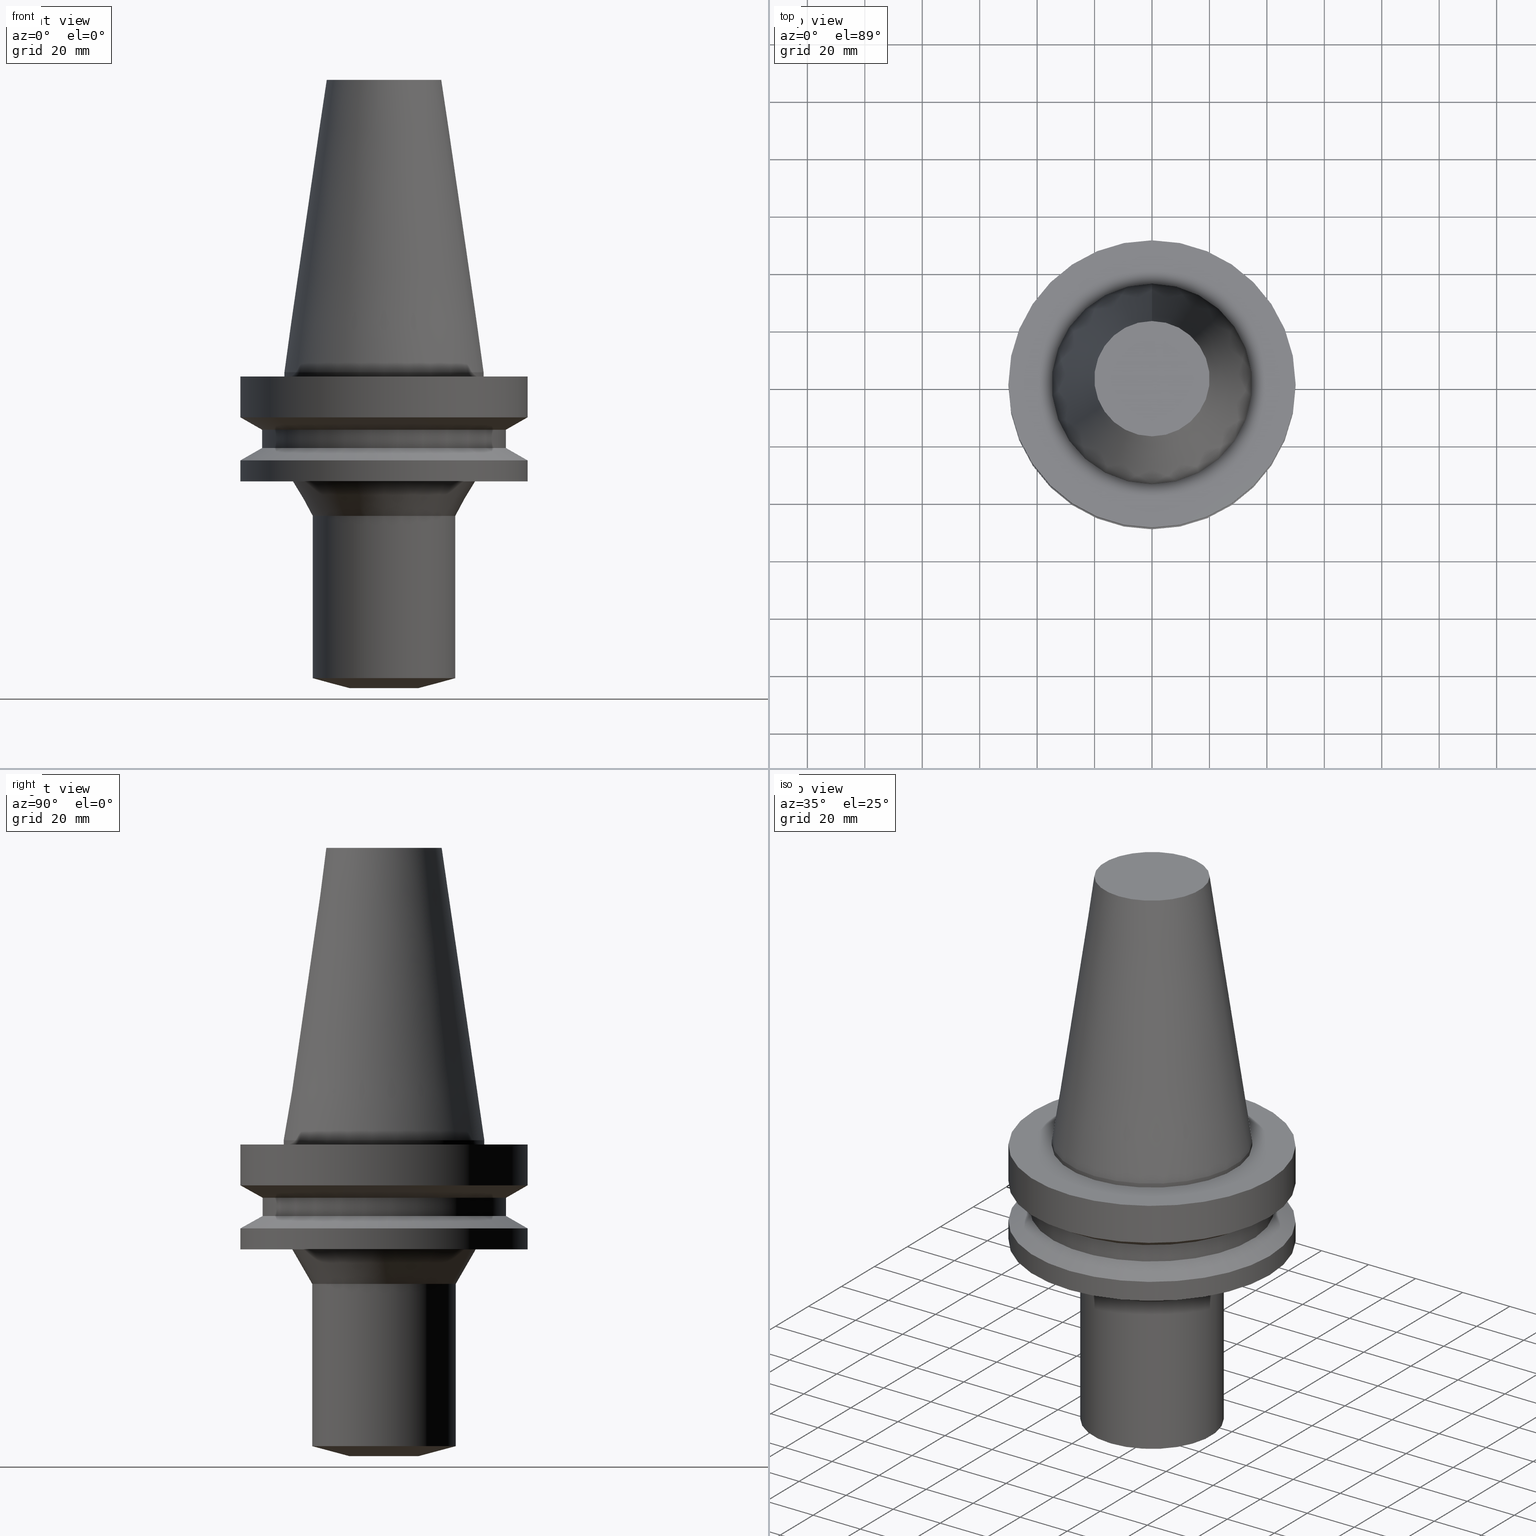
[diagram: canonical four-view strip — front | top / right | iso, engineering-drawing reading convention]
A machine part, canonical four-view strip (front | top / right | iso — engineering-drawing reading convention). The complete STEP part file that produces these views, byte-faithful:
ISO-10303-21;
HEADER;
FILE_DESCRIPTION((''),'1');
FILE_NAME('T:/21_DXF\X2\30C730FC30BF4F5C621057FA6E96\X0\/BBT50M-BSL20-110.stp','2017-05-09T05:45:31',(''),(''),'Spatial Interop R21 SP3','Kubotek KeyCreator 2011 V10.0.2 (22737)',' ');
FILE_SCHEMA(('automotive_design'));
ENDSEC;
DATA;
#1=MECHANICAL_DESIGN_GEOMETRIC_PRESENTATION_REPRESENTATION(' ',(#10,#11,#12,#13,#14,#15,#16,#17,#18,#19,#20,#21,#22,#23,#24,#25,#26,#27,#28,#29,#30,#31,#32,#33,#34,#35,#36,#37),#6);
#2=PRODUCT_DEFINITION_CONTEXT('',#38,'design');
#3=APPLICATION_PROTOCOL_DEFINITION('INTERNATIONAL STANDARD','automotive_design',1994,#38);
#4=PRODUCT_CATEGORY_RELATIONSHIP('NONE','NONE',#39,#40);
#5=SHAPE_DEFINITION_REPRESENTATION(#41,#42);
#6= (GEOMETRIC_REPRESENTATION_CONTEXT(3)GLOBAL_UNCERTAINTY_ASSIGNED_CONTEXT((#45))GLOBAL_UNIT_ASSIGNED_CONTEXT((#47,#48,#49))REPRESENTATION_CONTEXT('NONE','WORKSPACE'));
#10=STYLED_ITEM('',(#51),#52);
#11=STYLED_ITEM('',(#53,#54),#55);
#12=STYLED_ITEM('',(#56,#57),#58);
#13=STYLED_ITEM('',(#59,#60),#61);
#14=STYLED_ITEM('',(#62),#63);
#15=STYLED_ITEM('',(#64),#65);
#16=STYLED_ITEM('',(#66,#67),#68);
#17=STYLED_ITEM('',(#69,#70),#71);
#18=STYLED_ITEM('',(#72),#73);
#19=STYLED_ITEM('',(#74,#75),#76);
#20=STYLED_ITEM('',(#77),#78);
#21=STYLED_ITEM('',(#79),#80);
#22=STYLED_ITEM('',(#81,#82),#83);
#23=STYLED_ITEM('',(#84),#85);
#24=STYLED_ITEM('',(#86,#87),#88);
#25=STYLED_ITEM('',(#89,#90),#91);
#26=STYLED_ITEM('',(#92),#93);
#27=STYLED_ITEM('',(#94,#95),#96);
#28=STYLED_ITEM('',(#97),#98);
#29=STYLED_ITEM('',(#99,#100),#101);
#30=STYLED_ITEM('',(#102,#103),#104);
#31=STYLED_ITEM('',(#105,#106),#107);
#32=STYLED_ITEM('',(#108),#109);
#33=STYLED_ITEM('',(#110),#111);
#34=STYLED_ITEM('',(#112,#113),#114);
#35=STYLED_ITEM('',(#115),#116);
#36=STYLED_ITEM('',(#117,#118),#119);
#37=STYLED_ITEM('',(#120),#121);
#38=APPLICATION_CONTEXT(' ');
#39=PRODUCT_CATEGORY('part','NONE');
#40=PRODUCT_RELATED_PRODUCT_CATEGORY('detail',' ',(#122));
#41=PRODUCT_DEFINITION_SHAPE('NONE','NONE',#123);
#42=ADVANCED_BREP_SHAPE_REPRESENTATION('Unnamed[1]',(#119,#124),#6);
#45=UNCERTAINTY_MEASURE_WITH_UNIT(LENGTH_MEASURE(1.0E-006),#47,'','');
#47= (CONVERSION_BASED_UNIT('MILLIMETRE',#127)LENGTH_UNIT()NAMED_UNIT(#130));
#48= (NAMED_UNIT(#132)PLANE_ANGLE_UNIT()SI_UNIT($,.RADIAN.));
#49= (NAMED_UNIT(#132)SOLID_ANGLE_UNIT()SI_UNIT($,.STERADIAN.));
#51=PRESENTATION_STYLE_ASSIGNMENT((#138));
#52=EDGE_CURVE('Unnamed[1]',#139,#139,#140,.T.);
#53=PRESENTATION_STYLE_ASSIGNMENT((#141));
#54=PRESENTATION_STYLE_ASSIGNMENT((#142));
#55=ADVANCED_FACE('Unnamed[1]',(#143,#144),#145,.T.);
#56=PRESENTATION_STYLE_ASSIGNMENT((#146));
#57=PRESENTATION_STYLE_ASSIGNMENT((#147));
#58=ADVANCED_FACE('Unnamed[1]',(#148,#149),#150,.T.);
#59=PRESENTATION_STYLE_ASSIGNMENT((#151));
#60=PRESENTATION_STYLE_ASSIGNMENT((#152));
#61=ADVANCED_FACE('Unnamed[1]',(#153,#154),#155,.T.);
#62=PRESENTATION_STYLE_ASSIGNMENT((#156));
#63=EDGE_CURVE('Unnamed[1]',#157,#157,#158,.T.);
#64=PRESENTATION_STYLE_ASSIGNMENT((#159));
#65=EDGE_CURVE('Unnamed[1]',#160,#160,#161,.T.);
#66=PRESENTATION_STYLE_ASSIGNMENT((#162));
#67=PRESENTATION_STYLE_ASSIGNMENT((#163));
#68=ADVANCED_FACE('Unnamed[1]',(#164),#165,.T.);
#69=PRESENTATION_STYLE_ASSIGNMENT((#166));
#70=PRESENTATION_STYLE_ASSIGNMENT((#167));
#71=ADVANCED_FACE('Unnamed[1]',(#168,#169),#170,.T.);
#72=PRESENTATION_STYLE_ASSIGNMENT((#171));
#73=EDGE_CURVE('Unnamed[1]',#172,#172,#173,.T.);
#74=PRESENTATION_STYLE_ASSIGNMENT((#174));
#75=PRESENTATION_STYLE_ASSIGNMENT((#175));
#76=ADVANCED_FACE('Unnamed[1]',(#176,#177),#178,.T.);
#77=PRESENTATION_STYLE_ASSIGNMENT((#179));
#78=EDGE_CURVE('Unnamed[1]',#180,#180,#181,.T.);
#79=PRESENTATION_STYLE_ASSIGNMENT((#182));
#80=EDGE_CURVE('Unnamed[1]',#183,#183,#184,.T.);
#81=PRESENTATION_STYLE_ASSIGNMENT((#185));
#82=PRESENTATION_STYLE_ASSIGNMENT((#186));
#83=ADVANCED_FACE('Unnamed[1]',(#187,#188),#189,.T.);
#84=PRESENTATION_STYLE_ASSIGNMENT((#190));
#85=EDGE_CURVE('Unnamed[1]',#191,#191,#192,.T.);
#86=PRESENTATION_STYLE_ASSIGNMENT((#193));
#87=PRESENTATION_STYLE_ASSIGNMENT((#194));
#88=ADVANCED_FACE('Unnamed[1]',(#195,#196),#197,.T.);
#89=PRESENTATION_STYLE_ASSIGNMENT((#198));
#90=PRESENTATION_STYLE_ASSIGNMENT((#199));
#91=ADVANCED_FACE('Unnamed[1]',(#200,#201),#202,.T.);
#92=PRESENTATION_STYLE_ASSIGNMENT((#203));
#93=EDGE_CURVE('Unnamed[1]',#204,#204,#205,.T.);
#94=PRESENTATION_STYLE_ASSIGNMENT((#206));
#95=PRESENTATION_STYLE_ASSIGNMENT((#207));
#96=ADVANCED_FACE('Unnamed[1]',(#208,#209),#210,.T.);
#97=PRESENTATION_STYLE_ASSIGNMENT((#211));
#98=EDGE_CURVE('Unnamed[1]',#212,#212,#213,.T.);
#99=PRESENTATION_STYLE_ASSIGNMENT((#214));
#100=PRESENTATION_STYLE_ASSIGNMENT((#215));
#101=ADVANCED_FACE('Unnamed[1]',(#216,#217),#218,.T.);
#102=PRESENTATION_STYLE_ASSIGNMENT((#219));
#103=PRESENTATION_STYLE_ASSIGNMENT((#220));
#104=ADVANCED_FACE('Unnamed[1]',(#221,#222),#223,.T.);
#105=PRESENTATION_STYLE_ASSIGNMENT((#224));
#106=PRESENTATION_STYLE_ASSIGNMENT((#225));
#107=ADVANCED_FACE('Unnamed[1]',(#226),#227,.T.);
#108=PRESENTATION_STYLE_ASSIGNMENT((#228));
#109=EDGE_CURVE('Unnamed[1]',#229,#229,#230,.T.);
#110=PRESENTATION_STYLE_ASSIGNMENT((#231));
#111=EDGE_CURVE('Unnamed[1]',#232,#232,#233,.T.);
#112=PRESENTATION_STYLE_ASSIGNMENT((#234));
#113=PRESENTATION_STYLE_ASSIGNMENT((#235));
#114=ADVANCED_FACE('Unnamed[1]',(#236,#237),#238,.T.);
#115=PRESENTATION_STYLE_ASSIGNMENT((#239));
#116=EDGE_CURVE('Unnamed[1]',#240,#240,#241,.T.);
#117=PRESENTATION_STYLE_ASSIGNMENT((#242));
#118=PRESENTATION_STYLE_ASSIGNMENT((#243));
#119=MANIFOLD_SOLID_BREP('Unnamed[1]',#244);
#120=PRESENTATION_STYLE_ASSIGNMENT((#245));
#121=EDGE_CURVE('Unnamed[1]',#246,#246,#247,.T.);
#122=PRODUCT('Unnamed[1]','Unnamed[1]','PART-Unnamed[1]-DESC',(#248));
#123=PRODUCT_DEFINITION('NONE','NONE',#249,#2);
#124=AXIS2_PLACEMENT_3D('',#250,#251,#252);
#127=LENGTH_MEASURE_WITH_UNIT(LENGTH_MEASURE(1.0),#253);
#130=DIMENSIONAL_EXPONENTS(1.0,0.0,0.0,0.0,0.0,0.0,0.0);
#132=DIMENSIONAL_EXPONENTS(0.0,0.0,0.0,0.0,0.0,0.0,0.0);
#138=CURVE_STYLE('',#254,POSITIVE_LENGTH_MEASURE(1000.0),#255);
#139=VERTEX_POINT('',#256);
#140=CIRCLE('',#257,42.5);
#141=SURFACE_STYLE_USAGE(.BOTH.,#258);
#142=CURVE_STYLE('',#259,POSITIVE_LENGTH_MEASURE(1000.0),#260);
#143=FACE_BOUND('',#261,.T.);
#144=FACE_BOUND('',#262,.T.);
#145=CONICAL_SURFACE('',#263,46.25,1.04719755108881);
#146=SURFACE_STYLE_USAGE(.BOTH.,#264);
#147=CURVE_STYLE('',#265,POSITIVE_LENGTH_MEASURE(1000.0),#266);
#148=FACE_OUTER_BOUND('',#267,.T.);
#149=FACE_BOUND('',#268,.T.);
#150=PLANE('',#269);
#151=SURFACE_STYLE_USAGE(.BOTH.,#270);
#152=CURVE_STYLE('',#271,POSITIVE_LENGTH_MEASURE(1000.0),#272);
#153=FACE_BOUND('',#273,.T.);
#154=FACE_BOUND('',#274,.T.);
#155=CONICAL_SURFACE('',#275,46.25,1.04719755108882);
#156=CURVE_STYLE('',#276,POSITIVE_LENGTH_MEASURE(1000.0),#277);
#157=VERTEX_POINT('',#278);
#158=CIRCLE('',#279,34.925);
#159=CURVE_STYLE('',#280,POSITIVE_LENGTH_MEASURE(1000.0),#281);
#160=VERTEX_POINT('',#282);
#161=CIRCLE('',#283,50.0);
#162=SURFACE_STYLE_USAGE(.BOTH.,#284);
#163=CURVE_STYLE('',#285,POSITIVE_LENGTH_MEASURE(1000.0),#286);
#164=FACE_OUTER_BOUND('',#287,.T.);
#165=PLANE('',#288);
#166=SURFACE_STYLE_USAGE(.BOTH.,#289);
#167=CURVE_STYLE('',#290,POSITIVE_LENGTH_MEASURE(1000.0),#291);
#168=FACE_BOUND('',#292,.T.);
#169=FACE_BOUND('',#293,.T.);
#170=CYLINDRICAL_SURFACE('',#294,25.0000000000277);
#171=CURVE_STYLE('',#295,POSITIVE_LENGTH_MEASURE(1000.0),#296);
#172=VERTEX_POINT('',#297);
#173=CIRCLE('',#298,42.5);
#174=SURFACE_STYLE_USAGE(.BOTH.,#299);
#175=CURVE_STYLE('',#300,POSITIVE_LENGTH_MEASURE(1000.0),#301);
#176=FACE_BOUND('',#302,.T.);
#177=FACE_BOUND('',#303,.T.);
#178=CYLINDRICAL_SURFACE('',#304,42.5);
#179=CURVE_STYLE('',#305,POSITIVE_LENGTH_MEASURE(1000.0),#306);
#180=VERTEX_POINT('',#307);
#181=CIRCLE('',#308,50.0);
#182=CURVE_STYLE('',#309,POSITIVE_LENGTH_MEASURE(1000.0),#310);
#183=VERTEX_POINT('',#311);
#184=CIRCLE('',#312,31.9282032302842);
#185=SURFACE_STYLE_USAGE(.BOTH.,#313);
#186=CURVE_STYLE('',#314,POSITIVE_LENGTH_MEASURE(1000.0),#315);
#187=FACE_BOUND('',#316,.T.);
#188=FACE_BOUND('',#317,.T.);
#189=CONICAL_SURFACE('',#318,28.4641016151711,0.523598775598356);
#190=CURVE_STYLE('',#319,POSITIVE_LENGTH_MEASURE(1000.0),#320);
#191=VERTEX_POINT('',#321);
#192=CIRCLE('',#322,24.9999999999974);
#193=SURFACE_STYLE_USAGE(.BOTH.,#323);
#194=CURVE_STYLE('',#324,POSITIVE_LENGTH_MEASURE(1000.0),#325);
#195=FACE_BOUND('',#326,.T.);
#196=FACE_BOUND('',#327,.T.);
#197=CYLINDRICAL_SURFACE('',#328,34.925);
#198=SURFACE_STYLE_USAGE(.BOTH.,#329);
#199=CURVE_STYLE('',#330,POSITIVE_LENGTH_MEASURE(1000.0),#331);
#200=FACE_BOUND('',#332,.T.);
#201=FACE_BOUND('',#333,.T.);
#202=CYLINDRICAL_SURFACE('',#334,50.0);
#203=CURVE_STYLE('',#335,POSITIVE_LENGTH_MEASURE(1000.0),#336);
#204=VERTEX_POINT('',#337);
#205=CIRCLE('',#338,50.0);
#206=SURFACE_STYLE_USAGE(.BOTH.,#339);
#207=CURVE_STYLE('',#340,POSITIVE_LENGTH_MEASURE(1000.0),#341);
#208=FACE_BOUND('',#342,.T.);
#209=FACE_OUTER_BOUND('',#343,.T.);
#210=PLANE('',#344);
#211=CURVE_STYLE('',#345,POSITIVE_LENGTH_MEASURE(1000.0),#346);
#212=VERTEX_POINT('',#347);
#213=CIRCLE('',#348,34.925);
#214=SURFACE_STYLE_USAGE(.BOTH.,#349);
#215=CURVE_STYLE('',#350,POSITIVE_LENGTH_MEASURE(1000.0),#351);
#216=FACE_BOUND('',#352,.T.);
#217=FACE_BOUND('',#353,.T.);
#218=CYLINDRICAL_SURFACE('',#354,50.0);
#219=SURFACE_STYLE_USAGE(.BOTH.,#355);
#220=CURVE_STYLE('',#356,POSITIVE_LENGTH_MEASURE(1000.0),#357);
#221=FACE_BOUND('',#358,.T.);
#222=FACE_BOUND('',#359,.T.);
#223=CONICAL_SURFACE('',#360,18.4999999999994,1.30899693899576);
#224=SURFACE_STYLE_USAGE(.BOTH.,#361);
#225=CURVE_STYLE('',#362,POSITIVE_LENGTH_MEASURE(1000.0),#363);
#226=FACE_OUTER_BOUND('',#364,.T.);
#227=PLANE('',#365);
#228=CURVE_STYLE('',#366,POSITIVE_LENGTH_MEASURE(1000.0),#367);
#229=VERTEX_POINT('',#368);
#230=CIRCLE('',#369,12.0000000000013);
#231=CURVE_STYLE('',#370,POSITIVE_LENGTH_MEASURE(1000.0),#371);
#232=VERTEX_POINT('',#372);
#233=CIRCLE('',#373,50.0);
#234=SURFACE_STYLE_USAGE(.BOTH.,#374);
#235=CURVE_STYLE('',#375,POSITIVE_LENGTH_MEASURE(1000.0),#376);
#236=FACE_BOUND('',#377,.T.);
#237=FACE_BOUND('',#378,.T.);
#238=CONICAL_SURFACE('',#379,27.5020833325942,0.144812498253158);
#239=CURVE_STYLE('',#380,POSITIVE_LENGTH_MEASURE(1000.0),#381);
#240=VERTEX_POINT('',#382);
#241=CIRCLE('',#383,25.0000000000579);
#242=SURFACE_STYLE_USAGE(.BOTH.,#384);
#243=CURVE_STYLE('',#385,POSITIVE_LENGTH_MEASURE(1000.0),#386);
#244=CLOSED_SHELL('',(#107,#114,#88,#58,#101,#61,#76,#55,#91,#96,#83,#71,#104,#68));
#245=CURVE_STYLE('',#387,POSITIVE_LENGTH_MEASURE(1000.0),#388);
#246=VERTEX_POINT('',#389);
#247=CIRCLE('',#390,20.0791666651884);
#248=PRODUCT_CONTEXT('',#38,'mechanical');
#249=PRODUCT_DEFINITION_FORMATION_WITH_SPECIFIED_SOURCE(' ','NONE',#122,.NOT_KNOWN.);
#250=CARTESIAN_POINT('',(0.0,0.0,0.0));
#251=DIRECTION('',(0.0,0.0,1.0));
#252=DIRECTION('',(1.0,0.0,0.0));
#253= (NAMED_UNIT(#130)LENGTH_UNIT()SI_UNIT(.MILLI.,.METRE.));
#254=DRAUGHTING_PRE_DEFINED_CURVE_FONT('continuous');
#255=COLOUR_RGB('',0.0,1.0,0.0);
#256=CARTESIAN_POINT('',(1.61468902694396E-015,42.5,-26.36987298));
#257=AXIS2_PLACEMENT_3D('',#392,#393,#394);
#258=SURFACE_SIDE_STYLE('',(#395));
#259=DRAUGHTING_PRE_DEFINED_CURVE_FONT('continuous');
#260=COLOUR_RGB('',0.0,1.0,0.0);
#261=EDGE_LOOP('',(#396));
#262=EDGE_LOOP('',(#397));
#263=AXIS2_PLACEMENT_3D('',#398,#399,#400);
#264=SURFACE_SIDE_STYLE('',(#401));
#265=DRAUGHTING_PRE_DEFINED_CURVE_FONT('continuous');
#266=COLOUR_RGB('',0.0,1.0,0.0);
#267=EDGE_LOOP('',(#402));
#268=EDGE_LOOP('',(#403));
#269=AXIS2_PLACEMENT_3D('',#404,#405,#406);
#270=SURFACE_SIDE_STYLE('',(#407));
#271=DRAUGHTING_PRE_DEFINED_CURVE_FONT('continuous');
#272=COLOUR_RGB('',0.0,1.0,0.0);
#273=EDGE_LOOP('',(#408));
#274=EDGE_LOOP('',(#409));
#275=AXIS2_PLACEMENT_3D('',#410,#411,#412);
#276=DRAUGHTING_PRE_DEFINED_CURVE_FONT('continuous');
#277=COLOUR_RGB('',0.0,1.0,0.0);
#278=CARTESIAN_POINT('',(9.18485099360511E-017,34.925,-1.5));
#279=AXIS2_PLACEMENT_3D('',#413,#414,#415);
#280=DRAUGHTING_PRE_DEFINED_CURVE_FONT('continuous');
#281=COLOUR_RGB('',0.0,1.0,0.0);
#282=CARTESIAN_POINT('',(9.18485099360509E-017,50.0,-1.49999999999999));
#283=AXIS2_PLACEMENT_3D('',#416,#417,#418);
#284=SURFACE_SIDE_STYLE('',(#419));
#285=DRAUGHTING_PRE_DEFINED_CURVE_FONT('continuous');
#286=COLOUR_RGB('',0.0,1.0,0.0);
#287=EDGE_LOOP('',(#420));
#288=AXIS2_PLACEMENT_3D('',#421,#422,#423);
#289=SURFACE_SIDE_STYLE('',(#424));
#290=DRAUGHTING_PRE_DEFINED_CURVE_FONT('continuous');
#291=COLOUR_RGB('',0.0,1.0,0.0);
#292=EDGE_LOOP('',(#425));
#293=EDGE_LOOP('',(#426));
#294=AXIS2_PLACEMENT_3D('',#427,#428,#429);
#295=DRAUGHTING_PRE_DEFINED_CURVE_FONT('continuous');
#296=COLOUR_RGB('',0.0,1.0,0.0);
#297=CARTESIAN_POINT('',(1.2264915470779E-015,42.5,-20.03012702));
#298=AXIS2_PLACEMENT_3D('',#430,#431,#432);
#299=SURFACE_SIDE_STYLE('',(#433));
#300=DRAUGHTING_PRE_DEFINED_CURVE_FONT('continuous');
#301=COLOUR_RGB('',0.0,1.0,0.0);
#302=EDGE_LOOP('',(#434));
#303=EDGE_LOOP('',(#435));
#304=AXIS2_PLACEMENT_3D('',#436,#437,#438);
#305=DRAUGHTING_PRE_DEFINED_CURVE_FONT('continuous');
#306=COLOUR_RGB('',0.0,1.0,0.0);
#307=CARTESIAN_POINT('',(9.61347737330674E-016,50.0,-15.7));
#308=AXIS2_PLACEMENT_3D('',#439,#440,#441);
#309=DRAUGHTING_PRE_DEFINED_CURVE_FONT('continuous');
#310=COLOUR_RGB('',0.0,1.0,0.0);
#311=CARTESIAN_POINT('',(2.32682891837997E-015,31.9282032302842,-38.0));
#312=AXIS2_PLACEMENT_3D('',#442,#443,#444);
#313=SURFACE_SIDE_STYLE('',(#445));
#314=DRAUGHTING_PRE_DEFINED_CURVE_FONT('continuous');
#315=COLOUR_RGB('',0.0,1.0,0.0);
#316=EDGE_LOOP('',(#446));
#317=EDGE_LOOP('',(#447));
#318=AXIS2_PLACEMENT_3D('',#448,#449,#450);
#319=DRAUGHTING_PRE_DEFINED_CURVE_FONT('continuous');
#320=COLOUR_RGB('',0.0,1.0,0.0);
#321=CARTESIAN_POINT('',(6.52226436676132E-015,24.9999999999974,-106.516660498396));
#322=AXIS2_PLACEMENT_3D('',#451,#452,#453);
#323=SURFACE_SIDE_STYLE('',(#454));
#324=DRAUGHTING_PRE_DEFINED_CURVE_FONT('continuous');
#325=COLOUR_RGB('',0.0,1.0,0.0);
#326=EDGE_LOOP('',(#455));
#327=EDGE_LOOP('',(#456));
#328=AXIS2_PLACEMENT_3D('',#457,#458,#459);
#329=SURFACE_SIDE_STYLE('',(#460));
#330=DRAUGHTING_PRE_DEFINED_CURVE_FONT('continuous');
#331=COLOUR_RGB('',0.0,1.0,0.0);
#332=EDGE_LOOP('',(#461));
#333=EDGE_LOOP('',(#462));
#334=AXIS2_PLACEMENT_3D('',#463,#464,#465);
#335=DRAUGHTING_PRE_DEFINED_CURVE_FONT('continuous');
#336=COLOUR_RGB('',0.0,1.0,0.0);
#337=CARTESIAN_POINT('',(1.87983283669119E-015,50.0,-30.7000000000001));
#338=AXIS2_PLACEMENT_3D('',#466,#467,#468);
#339=SURFACE_SIDE_STYLE('',(#469));
#340=DRAUGHTING_PRE_DEFINED_CURVE_FONT('continuous');
#341=COLOUR_RGB('',0.0,1.0,0.0);
#342=EDGE_LOOP('',(#470));
#343=EDGE_LOOP('',(#471));
#344=AXIS2_PLACEMENT_3D('',#472,#473,#474);
#345=DRAUGHTING_PRE_DEFINED_CURVE_FONT('continuous');
#346=COLOUR_RGB('',0.0,1.0,0.0);
#347=CARTESIAN_POINT('',(-4.30483861169435E-031,34.925,4.27707894602213E-015));
#348=AXIS2_PLACEMENT_3D('',#475,#476,#477);
#349=SURFACE_SIDE_STYLE('',(#478));
#350=DRAUGHTING_PRE_DEFINED_CURVE_FONT('continuous');
#351=COLOUR_RGB('',0.0,1.0,0.0);
#352=EDGE_LOOP('',(#479));
#353=EDGE_LOOP('',(#480));
#354=AXIS2_PLACEMENT_3D('',#481,#482,#483);
#355=SURFACE_SIDE_STYLE('',(#484));
#356=DRAUGHTING_PRE_DEFINED_CURVE_FONT('continuous');
#357=COLOUR_RGB('',0.0,1.0,0.0);
#358=EDGE_LOOP('',(#485));
#359=EDGE_LOOP('',(#486));
#360=AXIS2_PLACEMENT_3D('',#487,#488,#489);
#361=SURFACE_SIDE_STYLE('',(#490));
#362=DRAUGHTING_PRE_DEFINED_CURVE_FONT('continuous');
#363=COLOUR_RGB('',0.0,1.0,0.0);
#364=EDGE_LOOP('',(#491));
#365=AXIS2_PLACEMENT_3D('',#492,#493,#494);
#366=DRAUGHTING_PRE_DEFINED_CURVE_FONT('continuous');
#367=COLOUR_RGB('',0.0,1.0,0.0);
#368=CARTESIAN_POINT('',(6.73555739531042E-015,12.0000000000014,-110.0));
#369=AXIS2_PLACEMENT_3D('',#495,#496,#497);
#370=DRAUGHTING_PRE_DEFINED_CURVE_FONT('continuous');
#371=COLOUR_RGB('',0.0,1.0,0.0);
#372=CARTESIAN_POINT('',(2.32682891837997E-015,50.0,-38.0));
#373=AXIS2_PLACEMENT_3D('',#498,#499,#500);
#374=SURFACE_SIDE_STYLE('',(#501));
#375=DRAUGHTING_PRE_DEFINED_CURVE_FONT('continuous');
#376=COLOUR_RGB('',0.0,1.0,0.0);
#377=EDGE_LOOP('',(#502));
#378=EDGE_LOOP('',(#503));
#379=AXIS2_PLACEMENT_3D('',#504,#505,#506);
#380=DRAUGHTING_PRE_DEFINED_CURVE_FONT('continuous');
#381=COLOUR_RGB('',0.0,1.0,0.0);
#382=CARTESIAN_POINT('',(3.06161699786306E-015,25.0000000000579,-49.9999999999131));
#383=AXIS2_PLACEMENT_3D('',#507,#508,#509);
#384=SURFACE_SIDE_STYLE('',(#510));
#385=DRAUGHTING_PRE_DEFINED_CURVE_FONT('continuous');
#386=COLOUR_RGB('',0.0,1.0,0.0);
#387=DRAUGHTING_PRE_DEFINED_CURVE_FONT('continuous');
#388=COLOUR_RGB('',0.0,1.0,0.0);
#389=CARTESIAN_POINT('',(-6.23345220766002E-015,20.0791666651884,101.8));
#390=AXIS2_PLACEMENT_3D('',#511,#512,#513);
#392=CARTESIAN_POINT('',(1.61468902694396E-015,3.88836350876098E-015,-26.36987298));
#393=DIRECTION('',(6.12323399573677E-017,1.27566376151415E-016,-1.0));
#394=DIRECTION('',(-1.2638340442409E-032,1.0,1.27566376151415E-016));
#395=SURFACE_STYLE_FILL_AREA(#514);
#396=ORIENTED_EDGE('',*,*,#93,.F.);
#397=ORIENTED_EDGE('',*,*,#52,.T.);
#398=CARTESIAN_POINT('',(1.74726093181758E-015,4.16455281486933E-015,-28.53493649));
#399=DIRECTION('',(6.12323399573676E-017,1.27566376151391E-016,-1.0));
#400=DIRECTION('',(-1.26383404424039E-032,1.0,1.27566376151391E-016));
#401=SURFACE_STYLE_FILL_AREA(#515);
#402=ORIENTED_EDGE('',*,*,#65,.F.);
#403=ORIENTED_EDGE('',*,*,#63,.T.);
#404=CARTESIAN_POINT('',(9.1848509936051E-017,42.4625,-1.49999999999999));
#405=DIRECTION('',(-6.12323399573677E-017,-1.22464679914735E-016,1.0));
#406=DIRECTION('',(1.23259516440783E-032,-1.0,-1.22464679914735E-016));
#407=SURFACE_STYLE_FILL_AREA(#516);
#408=ORIENTED_EDGE('',*,*,#73,.F.);
#409=ORIENTED_EDGE('',*,*,#78,.T.);
#410=CARTESIAN_POINT('',(1.09391964220429E-015,2.80343578481495E-015,-17.86506351));
#411=DIRECTION('',(-6.12323399573676E-017,-1.27566376151391E-016,1.0));
#412=DIRECTION('',(-1.26383404424039E-032,1.0,1.27566376151391E-016));
#413=CARTESIAN_POINT('',(9.18485099360515E-017,7.15803937356665E-016,-1.5));
#414=DIRECTION('',(6.12323399573677E-017,1.27566376151315E-016,-1.0));
#415=DIRECTION('',(-1.26383404423932E-032,1.0,1.27566376151315E-016));
#416=CARTESIAN_POINT('',(9.18485099360515E-017,7.15803937356665E-016,-1.5));
#417=DIRECTION('',(6.12323399573677E-017,1.2756637615137E-016,-1.0));
#418=DIRECTION('',(-1.26383404424069E-032,1.0,1.2756637615137E-016));
#419=SURFACE_STYLE_FILL_AREA(#517);
#420=ORIENTED_EDGE('',*,*,#109,.T.);
#421=CARTESIAN_POINT('',(6.73555739531042E-015,6.00000000000068,-110.0));
#422=DIRECTION('',(6.12323399573677E-017,1.22464679914735E-016,-1.0));
#423=DIRECTION('',(-1.23259516440783E-032,1.0,1.22464679914735E-016));
#424=SURFACE_STYLE_FILL_AREA(#518);
#425=ORIENTED_EDGE('',*,*,#85,.F.);
#426=ORIENTED_EDGE('',*,*,#116,.T.);
#427=CARTESIAN_POINT('',(4.79194068231219E-015,1.0507585966674E-014,-78.2583302491547));
#428=DIRECTION('',(6.12323399573677E-017,1.27566376151358E-016,-1.0));
#429=DIRECTION('',(-1.26383404424E-032,1.0,1.27566376151358E-016));
#430=CARTESIAN_POINT('',(1.2264915470779E-015,3.07962509092328E-015,-20.03012702));
#431=DIRECTION('',(6.12323399573677E-017,1.27566376151415E-016,-1.0));
#432=DIRECTION('',(-1.2638340442409E-032,1.0,1.27566376151415E-016));
#433=SURFACE_STYLE_FILL_AREA(#519);
#434=ORIENTED_EDGE('',*,*,#52,.F.);
#435=ORIENTED_EDGE('',*,*,#73,.T.);
#436=CARTESIAN_POINT('',(1.42059028701093E-015,3.48399429984213E-015,-23.2));
#437=DIRECTION('',(6.12323399573677E-017,1.27566376151415E-016,-1.0));
#438=DIRECTION('',(-1.2638340442409E-032,1.0,1.27566376151415E-016));
#439=CARTESIAN_POINT('',(9.61347737330675E-016,2.52724647870661E-015,-15.7));
#440=DIRECTION('',(6.12323399573677E-017,1.2756637615137E-016,-1.0));
#441=DIRECTION('',(-1.26383404424069E-032,1.0,1.2756637615137E-016));
#442=CARTESIAN_POINT('',(2.32682891837997E-015,5.37197666688292E-015,-38.0));
#443=DIRECTION('',(6.12323399573677E-017,1.27566376151435E-016,-1.0));
#444=DIRECTION('',(-1.26383404423945E-032,1.0,1.27566376151435E-016));
#445=SURFACE_STYLE_FILL_AREA(#520);
#446=ORIENTED_EDGE('',*,*,#116,.F.);
#447=ORIENTED_EDGE('',*,*,#80,.T.);
#448=CARTESIAN_POINT('',(2.69422295812152E-015,6.1373749237858E-015,-43.9999999999565));
#449=DIRECTION('',(-6.12323399573677E-017,-1.2756637615139E-016,1.0));
#450=DIRECTION('',(-1.26383404424028E-032,1.0,1.2756637615139E-016));
#451=CARTESIAN_POINT('',(6.52226436676132E-015,1.41123987526594E-014,-106.516660498396));
#452=DIRECTION('',(6.12323399573676E-017,1.27566376151383E-016,-1.0));
#453=DIRECTION('',(-1.26383404424082E-032,1.0,1.27566376151383E-016));
#454=SURFACE_STYLE_FILL_AREA(#521);
#455=ORIENTED_EDGE('',*,*,#63,.F.);
#456=ORIENTED_EDGE('',*,*,#98,.T.);
#457=CARTESIAN_POINT('',(4.59242549680257E-017,6.20129155243112E-016,-0.75));
#458=DIRECTION('',(6.12323399573677E-017,1.27566376151315E-016,-1.0));
#459=DIRECTION('',(-1.26383404423932E-032,1.0,1.27566376151315E-016));
#460=SURFACE_STYLE_FILL_AREA(#522);
#461=ORIENTED_EDGE('',*,*,#111,.F.);
#462=ORIENTED_EDGE('',*,*,#93,.T.);
#463=CARTESIAN_POINT('',(2.10333087753558E-015,4.90635939393029E-015,-34.35));
#464=DIRECTION('',(6.12323399573677E-017,1.2756637615137E-016,-1.0));
#465=DIRECTION('',(-1.26383404424069E-032,1.0,1.2756637615137E-016));
#466=CARTESIAN_POINT('',(1.87983283669119E-015,4.44074212097767E-015,-30.7000000000001));
#467=DIRECTION('',(6.12323399573677E-017,1.2756637615137E-016,-1.0));
#468=DIRECTION('',(-1.26383404424069E-032,1.0,1.2756637615137E-016));
#469=SURFACE_STYLE_FILL_AREA(#523);
#470=ORIENTED_EDGE('',*,*,#80,.F.);
#471=ORIENTED_EDGE('',*,*,#111,.T.);
#472=CARTESIAN_POINT('',(2.32682891837997E-015,40.9641016151421,-38.0));
#473=DIRECTION('',(6.12323399573677E-017,1.22464679914735E-016,-1.0));
#474=DIRECTION('',(-1.23259516440783E-032,1.0,1.22464679914735E-016));
#475=CARTESIAN_POINT('',(-6.46439924272034E-048,5.24454373129558E-016,6.42271369351945E-032));
#476=DIRECTION('',(6.12323399573677E-017,1.27566376151315E-016,-1.0));
#477=DIRECTION('',(-1.26383404423932E-032,1.0,1.27566376151315E-016));
#478=SURFACE_STYLE_FILL_AREA(#524);
#479=ORIENTED_EDGE('',*,*,#78,.F.);
#480=ORIENTED_EDGE('',*,*,#65,.T.);
#481=CARTESIAN_POINT('',(5.26598123633363E-016,1.62152520803164E-015,-8.60000000000002));
#482=DIRECTION('',(6.12323399573677E-017,1.2756637615137E-016,-1.0));
#483=DIRECTION('',(-1.26383404424069E-032,1.0,1.2756637615137E-016));
#484=SURFACE_STYLE_FILL_AREA(#525);
#485=ORIENTED_EDGE('',*,*,#109,.F.);
#486=ORIENTED_EDGE('',*,*,#85,.T.);
#487=CARTESIAN_POINT('',(6.62891088103587E-015,1.43345772512217E-014,-108.258330249198));
#488=DIRECTION('',(-6.12323399573676E-017,-1.27566376151465E-016,1.0));
#489=DIRECTION('',(-1.26383404424063E-032,1.0,1.27566376151465E-016));
#490=SURFACE_STYLE_FILL_AREA(#526);
#491=ORIENTED_EDGE('',*,*,#121,.F.);
#492=CARTESIAN_POINT('',(-6.23345220766002E-015,10.0395833325942,101.8));
#493=DIRECTION('',(-6.12323399573677E-017,-1.22464679914735E-016,1.0));
#494=DIRECTION('',(1.23259516440783E-032,-1.0,-1.22464679914735E-016));
#495=CARTESIAN_POINT('',(6.73555739531042E-015,1.4556755749784E-014,-110.0));
#496=DIRECTION('',(6.12323399573677E-017,1.27566376151366E-016,-1.0));
#497=DIRECTION('',(-1.2638340442395E-032,1.0,1.27566376151366E-016));
#498=CARTESIAN_POINT('',(2.32682891837997E-015,5.37197666688292E-015,-38.0));
#499=DIRECTION('',(6.12323399573677E-017,1.2756637615137E-016,-1.0));
#500=DIRECTION('',(-1.26383404424069E-032,1.0,1.2756637615137E-016));
#501=SURFACE_STYLE_FILL_AREA(#527);
#502=ORIENTED_EDGE('',*,*,#98,.F.);
#503=ORIENTED_EDGE('',*,*,#121,.T.);
#504=CARTESIAN_POINT('',(-3.11672610383001E-015,-5.96867417297691E-015,50.8999999999999));
#505=DIRECTION('',(6.12323399573677E-017,1.27566376151432E-016,-1.0));
#506=DIRECTION('',(-1.26383404424073E-032,1.0,1.27566376151432E-016));
#507=CARTESIAN_POINT('',(3.06161699786306E-015,6.90277318068868E-015,-49.9999999999131));
#508=DIRECTION('',(6.12323399573677E-017,1.27566376151462E-016,-1.0));
#509=DIRECTION('',(-1.26383404423991E-032,1.0,1.27566376151462E-016));
#510=SURFACE_STYLE_FILL_AREA(#528);
#511=CARTESIAN_POINT('',(-6.23345220766002E-015,-1.24618027190834E-014,101.8));
#512=DIRECTION('',(6.12323399573677E-017,1.27566376151475E-016,-1.0));
#513=DIRECTION('',(-1.2638340442405E-032,1.0,1.27566376151475E-016));
#514=FILL_AREA_STYLE('',(#529));
#515=FILL_AREA_STYLE('',(#530));
#516=FILL_AREA_STYLE('',(#531));
#517=FILL_AREA_STYLE('',(#532));
#518=FILL_AREA_STYLE('',(#533));
#519=FILL_AREA_STYLE('',(#534));
#520=FILL_AREA_STYLE('',(#535));
#521=FILL_AREA_STYLE('',(#536));
#522=FILL_AREA_STYLE('',(#537));
#523=FILL_AREA_STYLE('',(#538));
#524=FILL_AREA_STYLE('',(#539));
#525=FILL_AREA_STYLE('',(#540));
#526=FILL_AREA_STYLE('',(#541));
#527=FILL_AREA_STYLE('',(#542));
#528=FILL_AREA_STYLE('',(#543));
#529=FILL_AREA_STYLE_COLOUR('',#544);
#530=FILL_AREA_STYLE_COLOUR('',#545);
#531=FILL_AREA_STYLE_COLOUR('',#546);
#532=FILL_AREA_STYLE_COLOUR('',#547);
#533=FILL_AREA_STYLE_COLOUR('',#548);
#534=FILL_AREA_STYLE_COLOUR('',#549);
#535=FILL_AREA_STYLE_COLOUR('',#550);
#536=FILL_AREA_STYLE_COLOUR('',#551);
#537=FILL_AREA_STYLE_COLOUR('',#552);
#538=FILL_AREA_STYLE_COLOUR('',#553);
#539=FILL_AREA_STYLE_COLOUR('',#554);
#540=FILL_AREA_STYLE_COLOUR('',#555);
#541=FILL_AREA_STYLE_COLOUR('',#556);
#542=FILL_AREA_STYLE_COLOUR('',#557);
#543=FILL_AREA_STYLE_COLOUR('',#558);
#544=COLOUR_RGB('',0.0,1.0,0.0);
#545=COLOUR_RGB('',0.0,1.0,0.0);
#546=COLOUR_RGB('',0.0,1.0,0.0);
#547=COLOUR_RGB('',0.0,1.0,0.0);
#548=COLOUR_RGB('',0.0,1.0,0.0);
#549=COLOUR_RGB('',0.0,1.0,0.0);
#550=COLOUR_RGB('',0.0,1.0,0.0);
#551=COLOUR_RGB('',0.0,1.0,0.0);
#552=COLOUR_RGB('',0.0,1.0,0.0);
#553=COLOUR_RGB('',0.0,1.0,0.0);
#554=COLOUR_RGB('',0.0,1.0,0.0);
#555=COLOUR_RGB('',0.0,1.0,0.0);
#556=COLOUR_RGB('',0.0,1.0,0.0);
#557=COLOUR_RGB('',0.0,1.0,0.0);
#558=COLOUR_RGB('',0.0,1.0,0.0);
ENDSEC;
END-ISO-10303-21;
